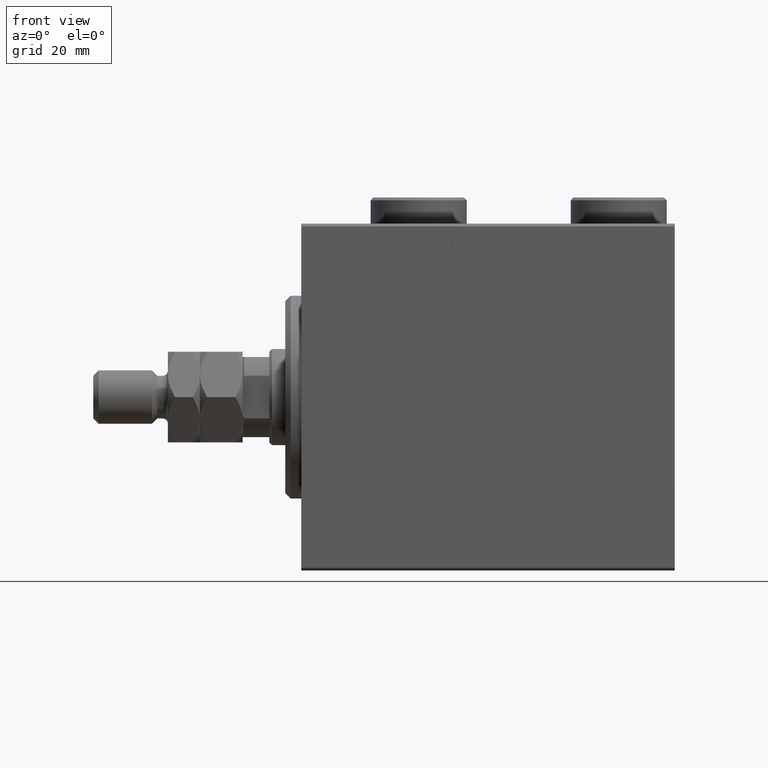
[diagram: clean part render]
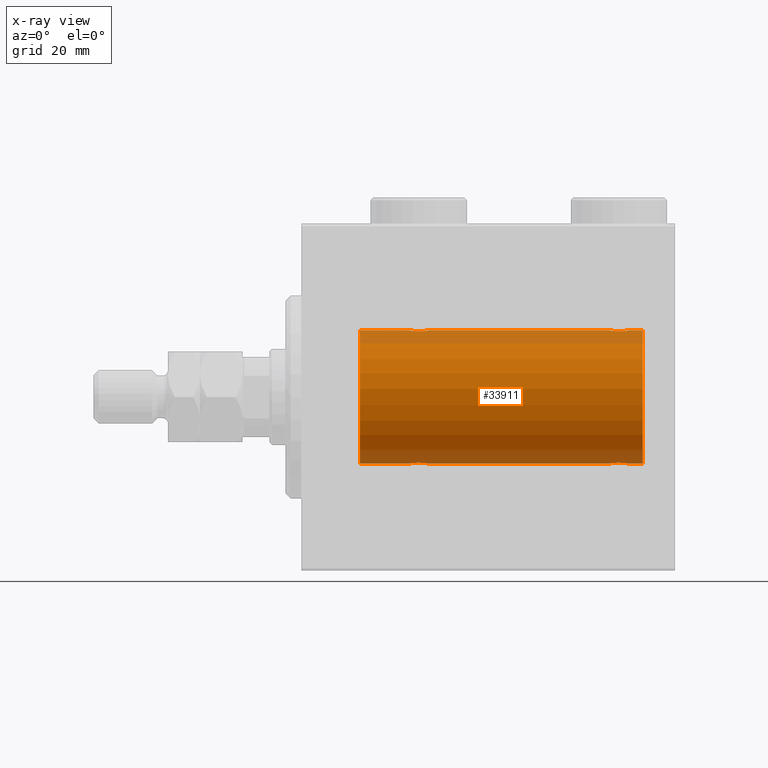
[diagram: x-ray — body ghosted, one internal face saturated and labeled with its STEP entity id]
A machine part, front view, then the same camera in x-ray: the body is ghosted and one INTERNAL B-rep face — a face not visible from any outside direction — is saturated and labeled: STEP entity #33911.
In plain terms, the highlighted cylindrical surface (partial cylindrical patch) has radius 12.5 mm, axis along (-1, -0, -0).
Its self-contained STEP definition (entity closure, byte-faithful):
#543 = CARTESIAN_POINT ( 'NONE',  ( 58.49654425923307599, -1.734959850168409812, 12.37922718965050706 ) ) ;
#551 = ORIENTED_EDGE ( 'NONE', *, *, #41473, .T. ) ;
#930 = CARTESIAN_POINT ( 'NONE',  ( 20.00000000000000000, -0.2646816682749822958, -12.50000000000000000 ) ) ;
#1109 = DIRECTION ( 'NONE',  ( -1.000000000000000000, -0.000000000000000000, -0.000000000000000000 ) ) ;
#1256 = CARTESIAN_POINT ( 'NONE',  ( 57.50000000000000000, -7.266434456262306043E-23, 12.50000000000000000 ) ) ;
#1474 = CARTESIAN_POINT ( 'NONE',  ( 57.99277848532008051, -1.321088093821082721, 12.43033959299025426 ) ) ;
#1712 = CARTESIAN_POINT ( 'NONE',  ( 61.50000000000000711, -7.215738317004035941E-16, 12.50000000000000000 ) ) ;
#1733 = CARTESIAN_POINT ( 'NONE',  ( 21.86659749548704212, -1.999916920503820306, 12.33897614545467647 ) ) ;
#1946 = CARTESIAN_POINT ( 'NONE',  ( 60.01693726697627085, -1.936441098420706775, 12.34912369794528608 ) ) ;
#2190 = CARTESIAN_POINT ( 'NONE',  ( 22.26093497285607370, -1.987194304939079448, 12.34105826212746138 ) ) ;
#2524 = VERTEX_POINT ( 'NONE', #31430 ) ;
#2781 = DIRECTION ( 'NONE',  ( -1.000000000000000000, -0.000000000000000000, -0.000000000000000000 ) ) ;
#2858 = CARTESIAN_POINT ( 'NONE',  ( 60.72027149897421339, -1.589951752150274844, -12.39868561261689273 ) ) ;
#2947 = ORIENTED_EDGE ( 'NONE', *, *, #3882, .F. ) ;
#3120 = ORIENTED_EDGE ( 'NONE', *, *, #29600, .F. ) ;
#3222 = VECTOR ( 'NONE', #2781, 1000.000000000000000 ) ;
#3569 = CARTESIAN_POINT ( 'NONE',  ( 23.50722151467992660, -1.321088093821078502, -12.43033959299025248 ) ) ;
#3789 = CARTESIAN_POINT ( 'NONE',  ( 20.99900207901491811, -1.736403706023270654, -12.37902502246767966 ) ) ;
#3882 = EDGE_CURVE ( 'NONE', #42644, #37188, #29610, .T. ) ;
#4027 = CARTESIAN_POINT ( 'NONE',  ( 21.35574721202270254, -1.897913903092047327, -12.35518060345725289 ) ) ;
#4262 = CARTESIAN_POINT ( 'NONE',  ( 21.86910032676576421, -2.000082296475566679, -12.33894933996983490 ) ) ;
#4489 = CARTESIAN_POINT ( 'NONE',  ( 22.64643896963591985, -1.897190184049187378, -12.35529285772521924 ) ) ;
#4933 = CARTESIAN_POINT ( 'NONE',  ( 10.99999999999999645, 0.000000000000000000, 0.000000000000000000 ) ) ;
#5049 = CARTESIAN_POINT ( 'NONE',  ( 57.76436921980423733, -1.002396200863562736, 12.46022444231050663 ) ) ;
#5062 = CARTESIAN_POINT ( 'NONE',  ( 24.00000000000000000, -4.527848004210791175E-16, 12.50000000000000000 ) ) ;
#5071 = CARTESIAN_POINT ( 'NONE',  ( 23.59744774691023039, -1.231226695485369893, 12.44059298055988272 ) ) ;
#5214 = LINE ( 'NONE', #27630, #46767 ) ;
#5286 = CARTESIAN_POINT ( 'NONE',  ( 20.99654425923307954, -1.734959850168413587, 12.37922718965051061 ) ) ;
#5528 = CARTESIAN_POINT ( 'NONE',  ( 24.00000000000000000, -4.527848004210791175E-16, 12.50000000000000000 ) ) ;
#5732 = CARTESIAN_POINT ( 'NONE',  ( 61.50000000000000711, -7.215738317004035941E-16, 12.50000000000000000 ) ) ;
#5744 = CARTESIAN_POINT ( 'NONE',  ( 59.63089967323423934, -2.000082296475567567, 12.33894933996983134 ) ) ;
#5911 = VERTEX_POINT ( 'NONE', #5732 ) ;
#5943 = CARTESIAN_POINT ( 'NONE',  ( 57.50000000000000000, -0.2646816682749856819, -12.50000000000000711 ) ) ;
#5984 = CARTESIAN_POINT ( 'NONE',  ( 64.00000000000000000, 0.000000000000000000, 12.50000000000000000 ) ) ;
#6031 = VERTEX_POINT ( 'NONE', #14046 ) ;
#6420 = CARTESIAN_POINT ( 'NONE',  ( 57.50000000000000000, -7.533308568696040923E-15, -12.50000000000000000 ) ) ;
#6561 = FACE_OUTER_BOUND ( 'NONE', #16204, .T. ) ;
#6573 = LINE ( 'NONE', #10370, #3222 ) ;
#6799 = DIRECTION ( 'NONE',  ( -1.000000000000000000, 0.000000000000000000, 0.000000000000000000 ) ) ;
#6940 = CIRCLE ( 'NONE', #28287, 12.50000000000000000 ) ;
#7352 = CARTESIAN_POINT ( 'NONE',  ( 19.99999999999999645, -3.213890523917628161E-15, -12.50000000000000000 ) ) ;
#8059 = CARTESIAN_POINT ( 'NONE',  ( 21.73906502714393341, -1.987194304939077671, -12.34105826212746138 ) ) ;
#9088 = CARTESIAN_POINT ( 'NONE',  ( 23.21854119541938033, -1.591305132013879131, 12.39851226212235957 ) ) ;
#9373 = VERTEX_POINT ( 'NONE', #22567 ) ;
#9534 = CARTESIAN_POINT ( 'NONE',  ( 60.82116712851446749, -1.507135374967701003, 12.40915432986587419 ) ) ;
#9979 = CARTESIAN_POINT ( 'NONE',  ( 58.28145880458064454, -1.591305132013884238, -12.39851226212236313 ) ) ;
#10370 = CARTESIAN_POINT ( 'NONE',  ( 64.00000000000000000, 1.530808498934191521E-15, -12.50000000000000000 ) ) ;
#10683 = CARTESIAN_POINT ( 'NONE',  ( 23.79785606468258052, -0.8858253204748003373, -12.46915613403960954 ) ) ;
#10693 = CARTESIAN_POINT ( 'NONE',  ( 57.90255225308975895, -1.231226695485371669, -12.44059298055988094 ) ) ;
#11466 = CARTESIAN_POINT ( 'NONE',  ( 58.85356103036409081, -1.897190184049188932, 12.35529285772521924 ) ) ;
#11505 = CARTESIAN_POINT ( 'NONE',  ( 19.99999999999999645, -7.265724481447607133E-23, 12.50000000000000000 ) ) ;
#11617 = CARTESIAN_POINT ( 'NONE',  ( 20.25337863379106551, -1.008535157355840761, -12.46157701909767646 ) ) ;
#12023 = CARTESIAN_POINT ( 'NONE',  ( 64.00000000000000000, 1.530808498934191521E-15, -12.50000000000000000 ) ) ;
#12054 = DIRECTION ( 'NONE',  ( -1.000000000000000000, 0.000000000000000000, 0.000000000000000000 ) ) ;
#12412 = CARTESIAN_POINT ( 'NONE',  ( 60.38616153879433313, -1.797736511708064144, 12.37015393445320655 ) ) ;
#12665 = CARTESIAN_POINT ( 'NONE',  ( 22.13089967323422869, -2.000082296475568011, 12.33894933996983134 ) ) ;
#13130 = CARTESIAN_POINT ( 'NONE',  ( 20.41018909771710454, -1.220538259806349446, 12.44075068685996932 ) ) ;
#13238 = DIRECTION ( 'NONE',  ( -1.000000000000000000, -0.000000000000000000, -0.000000000000000000 ) ) ;
#13326 = CARTESIAN_POINT ( 'NONE',  ( 61.08981090228289901, -1.220538259806349446, -12.44075068685996932 ) ) ;
#13553 = CARTESIAN_POINT ( 'NONE',  ( 61.23563078019578398, -1.002396200863560738, -12.46022444231050841 ) ) ;
#13801 = CARTESIAN_POINT ( 'NONE',  ( 60.50345574076694533, -1.734959850168411366, -12.37922718965050883 ) ) ;
#14046 = CARTESIAN_POINT ( 'NONE',  ( 57.50000000000000000, -7.266434456262306043E-23, 12.50000000000000000 ) ) ;
#14261 = CARTESIAN_POINT ( 'NONE',  ( 24.00000000000000711, -0.2612140938986747818, -12.50000000000000533 ) ) ;
#14270 = CARTESIAN_POINT ( 'NONE',  ( 59.36910032676577487, -2.000082296475570232, -12.33894933996983312 ) ) ;
#14470 = EDGE_CURVE ( 'NONE', #20847, #41508, #37546, .T. ) ;
#14500 = CARTESIAN_POINT ( 'NONE',  ( 23.32299943107732432, -1.505544071529935080, -12.40934942683853848 ) ) ;
#14777 = DIRECTION ( 'NONE',  ( -1.000000000000000000, -0.000000000000000000, -0.000000000000000000 ) ) ;
#15143 = CARTESIAN_POINT ( 'NONE',  ( 61.50000000000000711, 1.530808426270318106E-15, -12.50000000000000000 ) ) ;
#15196 = ORIENTED_EDGE ( 'NONE', *, *, #14470, .T. ) ;
#15473 = ORIENTED_EDGE ( 'NONE', *, *, #31713, .T. ) ;
#15837 = ORIENTED_EDGE ( 'NONE', *, *, #34473, .T. ) ;
#15994 = CARTESIAN_POINT ( 'NONE',  ( 58.17700056892267924, -1.505544071529938632, 12.40934942683853670 ) ) ;
#16204 = EDGE_LOOP ( 'NONE', ( #3120, #16616, #15196, #42245, #42761, #551, #41765, #2947, #15473, #21715, #15837, #21450 ) ) ;
#16252 = CARTESIAN_POINT ( 'NONE',  ( 22.51693726697628151, -1.936441098420708773, 12.34912369794528608 ) ) ;
#16462 = CARTESIAN_POINT ( 'NONE',  ( 61.50000000000000000, -0.2646816682749791316, 12.50000000000000000 ) ) ;
#16616 = ORIENTED_EDGE ( 'NONE', *, *, #30448, .T. ) ;
#17256 = VERTEX_POINT ( 'NONE', #37995 ) ;
#17382 = CARTESIAN_POINT ( 'NONE',  ( 59.63340250451296498, -1.999916920503821194, -12.33897614545467825 ) ) ;
#17517 = CARTESIAN_POINT ( 'NONE',  ( 10.99999999999999645, 0.000000000000000000, 12.50000000000000000 ) ) ;
#18326 = CARTESIAN_POINT ( 'NONE',  ( 20.05334320101619738, -0.5275951738695662252, -12.49118442338578561 ) ) ;
#19027 = CARTESIAN_POINT ( 'NONE',  ( 20.67883287148555382, -1.507135374967699670, -12.40915432986587064 ) ) ;
#19587 = EDGE_CURVE ( 'NONE', #9373, #33138, #21216, .T. ) ;
#20047 = AXIS2_PLACEMENT_3D ( 'NONE', #35648, #13238, #27327 ) ;
#20460 = DIRECTION ( 'NONE',  ( -1.000000000000000000, -0.000000000000000000, -0.000000000000000000 ) ) ;
#20721 = CARTESIAN_POINT ( 'NONE',  ( 23.00345574076691335, -1.734959850168410256, -12.37922718965050528 ) ) ;
#20732 = CARTESIAN_POINT ( 'NONE',  ( 60.82299943107732787, -1.505544071529934858, -12.40934942683853492 ) ) ;
#20847 = VERTEX_POINT ( 'NONE', #15143 ) ;
#20972 = CARTESIAN_POINT ( 'NONE',  ( 61.50000000000000711, 1.530808426270318106E-15, -12.50000000000000000 ) ) ;
#21109 = CYLINDRICAL_SURFACE ( 'NONE', #20047, 12.50000000000000000 ) ;
#21178 = VERTEX_POINT ( 'NONE', #5062 ) ;
#21216 = B_SPLINE_CURVE_WITH_KNOTS ( 'NONE', 3,
 ( #46958, #14261, #43372, #10683, #21680, #36221, #3569, #14500, #42418, #20721, #35265, #4489, #43612, #25949, #36920, #4262, #8059, #36445, #4027, #22373, #3789, #32870, #19027, #25714, #11617, #18326, #930, #7352 ),
 .UNSPECIFIED., .F., .F.,
 ( 4, 2, 2, 2, 2, 2, 2, 2, 2, 2, 2, 2, 2, 4 ),
 ( 0.006262980370572176700, 0.007045658964677373355, 0.007436998261729973851, 0.007828337558782575215, 0.008219676855835175711, 0.008611016152887776207, 0.009002355449940376703, 0.009393694746992977199, 0.009785034044045577695, 0.01017637334109817646, 0.01056771263815077869, 0.01095905193520337745, 0.01174173052930858711, 0.01252440912341379504 ),
 .UNSPECIFIED. ) ;
#21450 = ORIENTED_EDGE ( 'NONE', *, *, #41845, .F. ) ;
#21482 = CARTESIAN_POINT ( 'NONE',  ( 64.00000000000000000, 1.530808498934191521E-15, -12.50000000000000000 ) ) ;
#21680 = CARTESIAN_POINT ( 'NONE',  ( 23.73563078019576977, -1.002396200863559184, -12.46022444231050663 ) ) ;
#21715 = ORIENTED_EDGE ( 'NONE', *, *, #39407, .F. ) ;
#21766 = CARTESIAN_POINT ( 'NONE',  ( 64.00000000000000000, 0.000000000000000000, 12.50000000000000000 ) ) ;
#22373 = CARTESIAN_POINT ( 'NONE',  ( 21.11383846120566332, -1.797736511708062368, -12.37015393445320122 ) ) ;
#22567 = CARTESIAN_POINT ( 'NONE',  ( 24.00000000000000000, 1.530808426277417854E-15, -12.50000000000000000 ) ) ;
#22957 = CARTESIAN_POINT ( 'NONE',  ( 20.05255659427670167, -0.5247436444070346928, 12.49130933415156619 ) ) ;
#23111 = CIRCLE ( 'NONE', #36050, 12.50000000000000000 ) ;
#23190 = CARTESIAN_POINT ( 'NONE',  ( 22.88616153879432602, -1.797736511708064144, 12.37015393445320299 ) ) ;
#23390 = CARTESIAN_POINT ( 'NONE',  ( 60.50099792098509255, -1.736403706023274651, 12.37902502246767966 ) ) ;
#23412 = CARTESIAN_POINT ( 'NONE',  ( 20.20214393531741237, -0.8858253204748024467, 12.46915613403961309 ) ) ;
#23641 = CARTESIAN_POINT ( 'NONE',  ( 23.32116712851443907, -1.507135374967700558, 12.40915432986587064 ) ) ;
#24552 = CARTESIAN_POINT ( 'NONE',  ( 58.17883287148557514, -1.507135374967702557, -12.40915432986587241 ) ) ;
#24753 = VECTOR ( 'NONE', #31039, 1000.000000000000000 ) ;
#24934 = CARTESIAN_POINT ( 'NONE',  ( 64.00000000000000000, 0.000000000000000000, 0.000000000000000000 ) ) ;
#25275 = CARTESIAN_POINT ( 'NONE',  ( 57.55334320101621159, -0.5275951738695725535, -12.49118442338578561 ) ) ;
#25714 = CARTESIAN_POINT ( 'NONE',  ( 20.40255225308977671, -1.231226695485369893, -12.44059298055988627 ) ) ;
#25801 = CARTESIAN_POINT ( 'NONE',  ( 57.50000000000001421, -0.2612140938986763361, 12.50000000000000355 ) ) ;
#25949 = CARTESIAN_POINT ( 'NONE',  ( 22.26391373102435622, -1.986793270638196551, -12.34112317291864791 ) ) ;
#26880 = VERTEX_POINT ( 'NONE', #31726 ) ;
#26990 = CARTESIAN_POINT ( 'NONE',  ( 61.09744774691021263, -1.231226695485369671, 12.44059298055987917 ) ) ;
#27232 = CARTESIAN_POINT ( 'NONE',  ( 19.99999999999999645, -7.265724481447607133E-23, 12.50000000000000000 ) ) ;
#27327 = DIRECTION ( 'NONE',  ( 0.000000000000000000, 0.000000000000000000, 1.000000000000000000 ) ) ;
#27630 = CARTESIAN_POINT ( 'NONE',  ( 64.00000000000000000, 0.000000000000000000, 12.50000000000000000 ) ) ;
#27678 = CARTESIAN_POINT ( 'NONE',  ( 59.36659749548705634, -1.999916920503820750, 12.33897614545467469 ) ) ;
#27699 = CARTESIAN_POINT ( 'NONE',  ( 20.67700056892266502, -1.505544071529935968, 12.40934942683853670 ) ) ;
#28120 = CARTESIAN_POINT ( 'NONE',  ( 59.76391373102438109, -1.986793270638201214, -12.34112317291865324 ) ) ;
#28287 = AXIS2_PLACEMENT_3D ( 'NONE', #24934, #6799, #43291 ) ;
#28833 = CARTESIAN_POINT ( 'NONE',  ( 58.49900207901491456, -1.736403706023276650, -12.37902502246767789 ) ) ;
#29600 = EDGE_CURVE ( 'NONE', #2524, #17256, #6940, .T. ) ;
#29610 = LINE ( 'NONE', #21766, #41979 ) ;
#30338 = CARTESIAN_POINT ( 'NONE',  ( 20.49277848532005919, -1.321088093821079834, 12.43033959299025071 ) ) ;
#30448 = EDGE_CURVE ( 'NONE', #2524, #20847, #6573, .T. ) ;
#30812 = CARTESIAN_POINT ( 'NONE',  ( 23.00099792098508189, -1.736403706023272431, 12.37902502246767966 ) ) ;
#31039 = DIRECTION ( 'NONE',  ( -1.000000000000000000, -0.000000000000000000, -0.000000000000000000 ) ) ;
#31430 = CARTESIAN_POINT ( 'NONE',  ( 64.00000000000000000, 1.530808498934191521E-15, -12.50000000000000000 ) ) ;
#31696 = CARTESIAN_POINT ( 'NONE',  ( 61.50000000000000711, -0.2612140938986743932, -12.50000000000000000 ) ) ;
#31713 = EDGE_CURVE ( 'NONE', #42644, #21178, #40938, .T. ) ;
#31726 = CARTESIAN_POINT ( 'NONE',  ( 10.99999999999999645, 1.530808498934191521E-15, -12.50000000000000000 ) ) ;
#31929 = CARTESIAN_POINT ( 'NONE',  ( 60.01961472357874783, -1.935716533151644381, -12.34923763528284724 ) ) ;
#32037 = CARTESIAN_POINT ( 'NONE',  ( 57.50000000000000000, -7.533308568696040923E-15, -12.50000000000000000 ) ) ;
#32180 = CARTESIAN_POINT ( 'NONE',  ( 60.14643896963591629, -1.897190184049190043, -12.35529285772521391 ) ) ;
#32420 = CARTESIAN_POINT ( 'NONE',  ( 61.29785606468259118, -0.8858253204748017806, -12.46915613403961309 ) ) ;
#32870 = CARTESIAN_POINT ( 'NONE',  ( 20.78145880458060901, -1.591305132013878021, -12.39851226212236313 ) ) ;
#33138 = VERTEX_POINT ( 'NONE', #43048 ) ;
#33754 = LINE ( 'NONE', #12023, #41469 ) ;
#33911 = ADVANCED_FACE ( 'NONE', ( #6561 ), #21109, .F. ) ;
#33930 = CARTESIAN_POINT ( 'NONE',  ( 19.99999999999999289, -0.2612140938986765581, 12.50000000000000000 ) ) ;
#34128 = CARTESIAN_POINT ( 'NONE',  ( 57.91018909771712231, -1.220538259806350112, 12.44075068685996932 ) ) ;
#34363 = CARTESIAN_POINT ( 'NONE',  ( 61.44665679898378130, -0.5275951738695680016, 12.49118442338578205 ) ) ;
#34385 = CARTESIAN_POINT ( 'NONE',  ( 21.11125274202960256, -1.796480516834690233, 12.37033750336835958 ) ) ;
#34473 = EDGE_CURVE ( 'NONE', #6031, #5911, #36828, .T. ) ;
#34616 = CARTESIAN_POINT ( 'NONE',  ( 22.64425278797729391, -1.897913903092048438, 12.35518060345725111 ) ) ;
#34821 = CARTESIAN_POINT ( 'NONE',  ( 59.76093497285608436, -1.987194304939078116, 12.34105826212746138 ) ) ;
#35265 = CARTESIAN_POINT ( 'NONE',  ( 22.88874725797039389, -1.796480516834687347, -12.37033750336835247 ) ) ;
#35275 = CARTESIAN_POINT ( 'NONE',  ( 58.85574721202270609, -1.897913903092051324, -12.35518060345725289 ) ) ;
#35510 = CARTESIAN_POINT ( 'NONE',  ( 58.61383846120568109, -1.797736511708066143, -12.37015393445320655 ) ) ;
#35648 = CARTESIAN_POINT ( 'NONE',  ( 64.00000000000000000, 0.000000000000000000, 0.000000000000000000 ) ) ;
#36050 = AXIS2_PLACEMENT_3D ( 'NONE', #4933, #12054, #41411 ) ;
#36221 = CARTESIAN_POINT ( 'NONE',  ( 23.58981090228289546, -1.220538259806347225, -12.44075068685997287 ) ) ;
#36445 = CARTESIAN_POINT ( 'NONE',  ( 21.48306273302371494, -1.936441098420706997, -12.34912369794528431 ) ) ;
#36828 = B_SPLINE_CURVE_WITH_KNOTS ( 'NONE', 3,
 ( #1256, #25801, #44860, #41295, #5049, #34128, #1474, #15994, #40342, #543, #44153, #11466, #40583, #41746, #27678, #5744, #34821, #1946, #46030, #12412, #23390, #37929, #9534, #26990, #38166, #34363, #16462, #1712 ),
 .UNSPECIFIED., .F., .F.,
 ( 4, 2, 2, 2, 2, 2, 2, 2, 2, 2, 2, 2, 2, 4 ),
 ( 0.006262980370572174098, 0.007045658964677370753, 0.007436998261729972984, 0.007828337558782575215, 0.008219676855835175711, 0.008611016152887777941, 0.009002355449940380172, 0.009393694746992982403, 0.009785034044045584634, 0.01017637334109818686, 0.01056771263815078910, 0.01095905193520338959, 0.01174173052930859232, 0.01252440912341379678 ),
 .UNSPECIFIED. ) ;
#36920 = CARTESIAN_POINT ( 'NONE',  ( 22.13340250451295077, -1.999916920503817197, -12.33897614545467469 ) ) ;
#37188 = VERTEX_POINT ( 'NONE', #17517 ) ;
#37546 = B_SPLINE_CURVE_WITH_KNOTS ( 'NONE', 3,
 ( #20972, #31696, #42428, #32420, #13553, #13326, #39331, #20732, #2858, #13801, #46968, #32180, #31929, #28120, #17382, #14270, #46731, #42668, #35275, #35510, #28833, #9979, #24552, #10693, #39087, #25275, #5943, #6420 ),
 .UNSPECIFIED., .F., .F.,
 ( 4, 2, 2, 2, 2, 2, 2, 2, 2, 2, 2, 2, 2, 4 ),
 ( 0.006262980370572173230, 0.007045658964677369018, 0.007436998261729971249, 0.007828337558782573480, 0.008219676855835175711, 0.008611016152887777941, 0.009002355449940380172, 0.009393694746992982403, 0.009785034044045584634, 0.01017637334109818686, 0.01056771263815078910, 0.01095905193520339133, 0.01174173052930859579, 0.01252440912341380025 ),
 .UNSPECIFIED. ) ;
#37733 = CARTESIAN_POINT ( 'NONE',  ( 23.94665679898380617, -0.5275951738695671134, 12.49118442338578561 ) ) ;
#37929 = CARTESIAN_POINT ( 'NONE',  ( 60.71854119541938388, -1.591305132013881796, 12.39851226212235957 ) ) ;
#37953 = CARTESIAN_POINT ( 'NONE',  ( 20.26436921980423023, -1.002396200863561404, 12.46022444231050841 ) ) ;
#37995 = CARTESIAN_POINT ( 'NONE',  ( 64.00000000000000000, 0.000000000000000000, 12.50000000000000000 ) ) ;
#38166 = CARTESIAN_POINT ( 'NONE',  ( 61.24662136620892028, -1.008535157355842760, 12.46157701909767468 ) ) ;
#38187 = CARTESIAN_POINT ( 'NONE',  ( 23.74662136620892383, -1.008535157355842538, 12.46157701909767646 ) ) ;
#38553 = EDGE_CURVE ( 'NONE', #26880, #37188, #23111, .T. ) ;
#38654 = LINE ( 'NONE', #5984, #24753 ) ;
#39087 = CARTESIAN_POINT ( 'NONE',  ( 57.75337863379106551, -1.008535157355846090, -12.46157701909767290 ) ) ;
#39331 = CARTESIAN_POINT ( 'NONE',  ( 61.00722151467995502, -1.321088093821077614, -12.43033959299025248 ) ) ;
#39407 = EDGE_CURVE ( 'NONE', #6031, #21178, #5214, .T. ) ;
#39476 = VECTOR ( 'NONE', #14777, 1000.000000000000000 ) ;
#40342 = CARTESIAN_POINT ( 'NONE',  ( 58.27972850102579372, -1.589951752150273068, 12.39868561261688917 ) ) ;
#40583 = CARTESIAN_POINT ( 'NONE',  ( 58.98038527642127349, -1.935716533151643493, 12.34923763528284901 ) ) ;
#40590 = DIRECTION ( 'NONE',  ( -1.000000000000000000, -0.000000000000000000, -0.000000000000000000 ) ) ;
#40938 = B_SPLINE_CURVE_WITH_KNOTS ( 'NONE', 3,
 ( #27232, #33930, #22957, #23412, #37953, #13130, #30338, #27699, #45577, #5286, #34385, #41321, #42001, #44883, #1733, #12665, #2190, #16252, #34616, #23190, #30812, #9088, #23641, #5071, #38187, #37733, #42237, #5528 ),
 .UNSPECIFIED., .F., .F.,
 ( 4, 2, 2, 2, 2, 2, 2, 2, 2, 2, 2, 2, 2, 4 ),
 ( 0.006262980370572172363, 0.007045658964677369886, 0.007436998261729971249, 0.007828337558782571745, 0.008219676855835172241, 0.008611016152887774472, 0.009002355449940373233, 0.009393694746992975464, 0.009785034044045575960, 0.01017637334109817646, 0.01056771263815077869, 0.01095905193520337918, 0.01174173052930858538, 0.01252440912341379504 ),
 .UNSPECIFIED. ) ;
#41295 = CARTESIAN_POINT ( 'NONE',  ( 57.70214393531741592, -0.8858253204748025578, 12.46915613403960954 ) ) ;
#41321 = CARTESIAN_POINT ( 'NONE',  ( 21.35356103036408371, -1.897190184049189599, 12.35529285772521391 ) ) ;
#41411 = DIRECTION ( 'NONE',  ( 0.000000000000000000, 0.000000000000000000, 1.000000000000000000 ) ) ;
#41469 = VECTOR ( 'NONE', #1109, 1000.000000000000000 ) ;
#41473 = EDGE_CURVE ( 'NONE', #33138, #26880, #33754, .T. ) ;
#41508 = VERTEX_POINT ( 'NONE', #32037 ) ;
#41746 = CARTESIAN_POINT ( 'NONE',  ( 59.23608626897564733, -1.986793270638198106, 12.34112317291865146 ) ) ;
#41765 = ORIENTED_EDGE ( 'NONE', *, *, #38553, .T. ) ;
#41845 = EDGE_CURVE ( 'NONE', #17256, #5911, #38654, .T. ) ;
#41979 = VECTOR ( 'NONE', #40590, 1000.000000000000000 ) ;
#42001 = CARTESIAN_POINT ( 'NONE',  ( 21.48038527642126283, -1.935716533151644825, 12.34923763528284724 ) ) ;
#42237 = CARTESIAN_POINT ( 'NONE',  ( 24.00000000000000000, -0.2646816682749787430, 12.50000000000000178 ) ) ;
#42245 = ORIENTED_EDGE ( 'NONE', *, *, #46185, .T. ) ;
#42418 = CARTESIAN_POINT ( 'NONE',  ( 23.22027149897420628, -1.589951752150275732, -12.39868561261689273 ) ) ;
#42428 = CARTESIAN_POINT ( 'NONE',  ( 61.44744340572331254, -0.5247436444070329165, -12.49130933415156797 ) ) ;
#42644 = VERTEX_POINT ( 'NONE', #11505 ) ;
#42668 = CARTESIAN_POINT ( 'NONE',  ( 58.98306273302370784, -1.936441098420709883, -12.34912369794528786 ) ) ;
#42761 = ORIENTED_EDGE ( 'NONE', *, *, #19587, .T. ) ;
#42939 = LINE ( 'NONE', #21482, #39476 ) ;
#43048 = CARTESIAN_POINT ( 'NONE',  ( 19.99999999999999645, -3.213890523917628161E-15, -12.50000000000000000 ) ) ;
#43291 = DIRECTION ( 'NONE',  ( 0.000000000000000000, 0.000000000000000000, 1.000000000000000000 ) ) ;
#43372 = CARTESIAN_POINT ( 'NONE',  ( 23.94744340572329833, -0.5247436444070328054, -12.49130933415156619 ) ) ;
#43612 = CARTESIAN_POINT ( 'NONE',  ( 22.51961472357873717, -1.935716533151642826, -12.34923763528285257 ) ) ;
#44153 = CARTESIAN_POINT ( 'NONE',  ( 58.61125274202960611, -1.796480516834688679, 12.37033750336835425 ) ) ;
#44860 = CARTESIAN_POINT ( 'NONE',  ( 57.55255659427669457, -0.5247436444070353589, 12.49130933415156441 ) ) ;
#44883 = CARTESIAN_POINT ( 'NONE',  ( 21.73608626897565799, -1.986793270638199438, 12.34112317291865502 ) ) ;
#45577 = CARTESIAN_POINT ( 'NONE',  ( 20.77972850102578661, -1.589951752150277287, 12.39868561261688917 ) ) ;
#46030 = CARTESIAN_POINT ( 'NONE',  ( 60.14425278797731522, -1.897913903092049548, 12.35518060345725289 ) ) ;
#46185 = EDGE_CURVE ( 'NONE', #41508, #9373, #42939, .T. ) ;
#46731 = CARTESIAN_POINT ( 'NONE',  ( 59.23906502714393696, -1.987194304939080336, -12.34105826212745960 ) ) ;
#46767 = VECTOR ( 'NONE', #20460, 1000.000000000000000 ) ;
#46958 = CARTESIAN_POINT ( 'NONE',  ( 24.00000000000000000, 1.530808426277417854E-15, -12.50000000000000000 ) ) ;
#46968 = CARTESIAN_POINT ( 'NONE',  ( 60.38874725797041521, -1.796480516834690455, -12.37033750336835780 ) ) ;